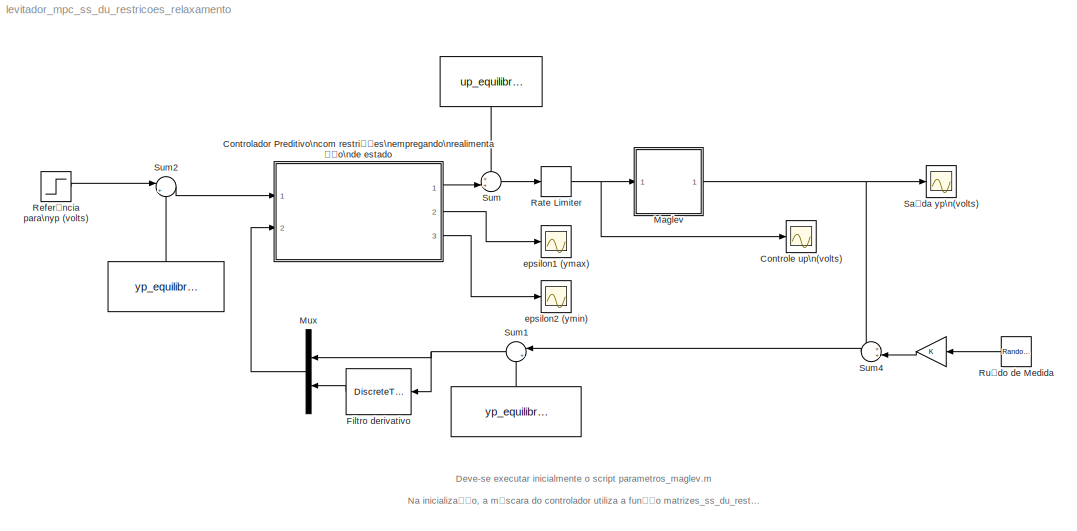
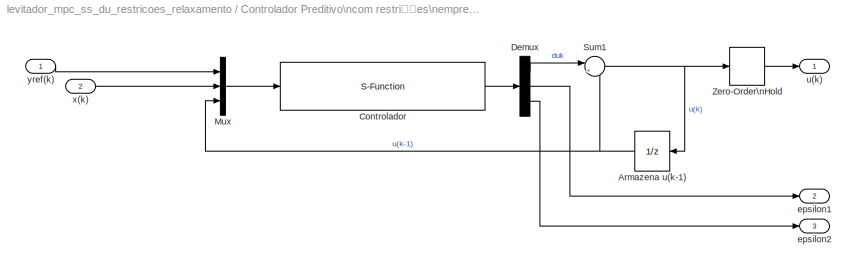
MODEL levitador_mpc_ss_du_restricoes_relaxamento
KIND model
CONFIG StartFcn = disp('Início da simulação.')\nclc
BLOCK [Constant]  
  SID = 42
  Value = yp_equilibrio
BLOCK [Constant]   
  SID = 43
  Value = yp_equilibrio
BLOCK [Constant]    
  SID = 41
  Value = up_equilibrio
BLOCK [Gain]      
  OutDataTypeStr = Inherit: Inherit via internal rule
  ParamDataTypeStr = Inherit: Inherit via internal rule
  SID = 83
  SaturateOnIntegerOverflow = off
BLOCK [SubSystem] Controlador Preditivo\ncom restrições\nempregando\nrealimentação\nde estado
  FunctionWithSeparateData = off
  MaskCallbackString = |||||||||||||||
  MaskEnableString = on,on,on,on,on,on,on,on,on,on,on,on,on,on,on,on
  MaskHideContents = off
  MaskIconFrame = on
  MaskIconOpaque = on
  MaskIconRotate = none
  MaskIconUnits = autoscale
  MaskInitialization = [Phi,G,Hqp,Aqp,flp,Alp] = matrizes_ss_du_restricoes_relaxamento(A,B,C,N,M,rho,d1,d2);\nulim = uplim - up_equilibrio;\nylim = yplim - yp_equilibrio;\nylim_physical = yplim_physical - yp_equilibrio;\numin = ulim(1);\numax = ulim(2);\ndumin = dulim(1);\ndumax = dulim(2);\nymin = ylim(1);\nymax = ylim(2);\nymin_physical = ylim_physical(1);\nymax_physical = ylim_physical(2);\n\n
  MaskPortRotate = default
  MaskPromptString = Peso do controle (rho)|Horizonte de Predição (N)|Horizonte de Controle (M)|Matriz A|Matriz B|Matriz C|up_equilibrio|yp_equilibrio|[dumin, dumax]|[upmin, upmax]|[ypmin, ypmax]|[ypmin_physical,ypmax_physical]|Peso da variável de folga associada a ymax (d1)|Peso da variável de folga associada a ymin (d2)|Usar relaxacao ? (0 = NAO, 1 = SIM)|Periodo de amostragem
  MaskStyleString = edit,edit,edit,edit,edit,edit,edit,edit,edit,edit,edit,edit,edit,edit,edit,edit
  MaskToolTipString = on,on,on,on,on,on,on,on,on,on,on,on,on,on,on,on
  MaskTunableValueString = on,on,on,on,on,on,on,on,on,on,on,on,on,on,on,on
  MaskValueString = 1|10|5|A|B|C|up_equilibrio|yp_equilibrio|[-0.25, 0.25]|[-inf, inf]|[-0.06 0.06]|[-inf, inf]|1|1|1|T
  MaskVariables = rho=@1;N=@2;M=@3;A=@4;B=@5;C=@6;up_equilibrio=@7;yp_equilibrio=@8;dulim=@9;uplim=@10;yplim=@11;yplim_physical=@12;d1=@13;d2=@14;relaxation_flag=@15;T=@16;
  MaskVisibilityString = on,on,on,on,on,on,on,on,on,on,on,on,on,on,on,on
  MinAlgLoopOccurrences = off
  Opaque = off
  Ports = [2, 3]
  PropExecContextOutsideSubsystem = off
  RTWSystemCode = Auto
  RequestExecContextInheritance = off
  SID = 59
BLOCK [UnitDelay] Controlador Preditivo\ncom restrições\nempregando\nrealimentação\nde estado/Armazena u(k-1)
  SID = 62
  SampleTime = T
BLOCK [S-Function] Controlador Preditivo\ncom restrições\nempregando\nrealimentação\nde estado/Controlador
  EnableBusSupport = off
  FunctionName = mpc_ss_du_restricoes_relaxamento
  Parameters = Phi,G,Hqp,Aqp,flp,Alp,dumax,dumin,umax,umin,ymax,ymin,ymax_physical,ymin_physical,M,N,relaxation_flag,T
  Ports = [1, 1]
  SID = 63
BLOCK [Demux] Controlador Preditivo\ncom restrições\nempregando\nrealimentação\nde estado/Demux
  DisplayOption = bar
  Outputs = 3
  Ports = [1, 3]
  SID = 77
BLOCK [Mux] Controlador Preditivo\ncom restrições\nempregando\nrealimentação\nde estado/Mux
  DisplayOption = bar
  Inputs = 3
  Ports = [3, 1]
  SID = 65
BLOCK [Sum] Controlador Preditivo\ncom restrições\nempregando\nrealimentação\nde estado/Sum1
  IconShape = round
  Inputs = |++
  Ports = [2, 1]
  SID = 66
BLOCK [ZeroOrderHold] Controlador Preditivo\ncom restrições\nempregando\nrealimentação\nde estado/Zero-Order\nHold
  SID = 67
  SampleTime = T
BLOCK [Outport] Controlador Preditivo\ncom restrições\nempregando\nrealimentação\nde estado/epsilon1
  IconDisplay = Port number
  Port = 2
  SID = 78
BLOCK [Outport] Controlador Preditivo\ncom restrições\nempregando\nrealimentação\nde estado/epsilon2
  IconDisplay = Port number
  Port = 3
  SID = 79
BLOCK [Outport] Controlador Preditivo\ncom restrições\nempregando\nrealimentação\nde estado/u(k)
  IconDisplay = Port number
  SID = 68
BLOCK [Inport] Controlador Preditivo\ncom restrições\nempregando\nrealimentação\nde estado/x(k)
  IconDisplay = Port number
  Port = 2
  SID = 61
BLOCK [Inport] Controlador Preditivo\ncom restrições\nempregando\nrealimentação\nde estado/yref(k)
  IconDisplay = Port number
  SID = 60
BLOCK [Scope] Controle up\n(volts)
  Floating = off
  LimitDataPoints = off
  NumInputPorts = 1
  Ports = [1]
  SID = 10
  SaveName = y1
  ShowLegends = off
  TimeRange = 1
  YMax = 3.1
  YMin = 2.1
BLOCK [DiscreteTransferFcn] Filtro derivativo
  Denominator = dend
  InputPortMap = u0
  Numerator = numd
  Ports = [1, 1]
  SID = 84
  SampleTime = T
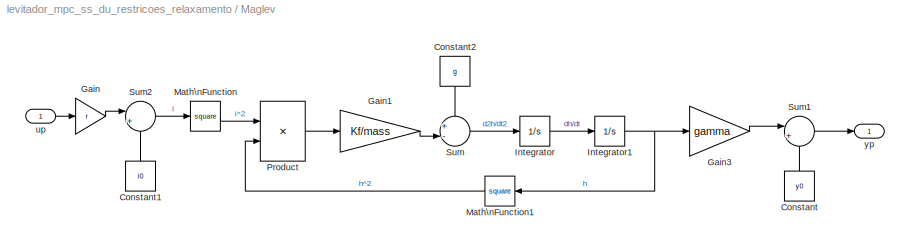
BLOCK [SubSystem] Maglev
  FunctionWithSeparateData = off
  MaskCallbackString = ||||||||
  MaskEnableString = on,on,on,on,on,on,on,on,on
  MaskHideContents = off
  MaskIconFrame = on
  MaskIconOpaque = on
  MaskIconRotate = none
  MaskIconUnits = autoscale
  MaskPortRotate = default
  MaskPromptString = mass (kg)|g (m/s^2)|y0 (V)|gamma (V/m)|i0 (A)|r (A/V)|Kf (N*m^2/A^2)|y inicial (V)|Periodo de Amostragem (s)
  MaskStyleString = edit,edit,edit,edit,edit,edit,edit,edit,edit
  MaskToolTipString = on,on,on,on,on,on,on,on,on
  MaskTunableValueString = on,on,on,on,on,on,on,on,on
  MaskValueString = mass|g|y0|gamma|i0|r|Kf|yp_equilibrio|T
  MaskVariables = mass=@1;g=@2;y0=@3;gamma=@4;i0=@5;r=@6;Kf=@7;y_inicial=@8;T=@9;
  MaskVisibilityString = on,on,on,on,on,on,on,on,on
  MinAlgLoopOccurrences = off
  Opaque = off
  Ports = [1, 1]
  PropExecContextOutsideSubsystem = off
  RTWSystemCode = Auto
  RequestExecContextInheritance = off
  SID = 12
BLOCK [Constant] Maglev/Constant
  SID = 14
  Value = y0
BLOCK [Constant] Maglev/Constant1
  SID = 15
  Value = i0
BLOCK [Constant] Maglev/Constant2
  SID = 16
  Value = g
BLOCK [Gain] Maglev/Gain
  Gain = r
  SID = 17
BLOCK [Gain] Maglev/Gain1
  Gain = Kf/mass
  SID = 18
BLOCK [Gain] Maglev/Gain3
  Gain = gamma
  SID = 19
BLOCK [Integrator] Maglev/Integrator
  Ports = [1, 1]
  SID = 20
BLOCK [Integrator] Maglev/Integrator1
  InitialCondition = (y_inicial - y0)/gamma
  Ports = [1, 1]
  SID = 21
BLOCK [Math] Maglev/Math\nFunction
  Operator = square
  Ports = [1, 1]
  SID = 22
BLOCK [Math] Maglev/Math\nFunction1
  Operator = square
  Ports = [1, 1]
  SID = 23
BLOCK [Product] Maglev/Product
  InputSameDT = off
  Inputs = */
  Ports = [2, 1]
  RndMeth = Floor
  SID = 24
BLOCK [Sum] Maglev/Sum
  IconShape = round
  InputSameDT = off
  Inputs = +-|
  OutDataTypeStr = Inherit: Inherit via internal rule
  Ports = [2, 1]
  SID = 25
BLOCK [Sum] Maglev/Sum1
  IconShape = round
  InputSameDT = off
  Inputs = |++
  OutDataTypeStr = Inherit: Inherit via internal rule
  Ports = [2, 1]
  SID = 26
BLOCK [Sum] Maglev/Sum2
  IconShape = round
  InputSameDT = off
  Inputs = |++
  OutDataTypeStr = Inherit: Inherit via internal rule
  Ports = [2, 1]
  SID = 27
BLOCK [Inport] Maglev/up
  IconDisplay = Port number
  SID = 13
BLOCK [Outport] Maglev/yp
  IconDisplay = Port number
  SID = 28
BLOCK [Mux] Mux
  DisplayOption = bar
  Inputs = 2
  Ports = [2, 1]
  SID = 29
BLOCK [RateLimiter] Rate Limiter
  FallingSlewLimit = -0.25/T
  RisingSlewLimit = 0.25/T
  SID = 71
BLOCK [Step] Referência para\nyp (volts)
  After = 0
  SID = 32
  SampleTime = 0
  Time = 0
BLOCK [RandomNumber] Ruído de Medida
  SID = 33
  SampleTime = 0
  Variance = 0.0001
BLOCK [Scope] Saída yp\n(volts)
  Floating = off
  LimitDataPoints = off
  NumInputPorts = 1
  Ports = [1]
  SID = 34
  SaveName = y
  ShowLegends = off
  TimeRange = 1
  YMax = 0.04000000000000001
  YMin = -0.06
BLOCK [Sum] Sum
  IconShape = round
  InputSameDT = off
  Inputs = ++|
  OutDataTypeStr = Inherit: Inherit via internal rule
  Ports = [2, 1]
  SID = 35
BLOCK [Sum] Sum1
  IconShape = round
  InputSameDT = off
  Inputs = |+-
  OutDataTypeStr = Inherit: Inherit via internal rule
  Ports = [2, 1]
  SID = 36
BLOCK [Sum] Sum2
  IconShape = round
  InputSameDT = off
  Inputs = |+-
  OutDataTypeStr = Inherit: Inherit via internal rule
  Ports = [2, 1]
  SID = 37
BLOCK [Sum] Sum4
  IconShape = round
  InputSameDT = off
  Inputs = ++|
  OutDataTypeStr = Inherit: Inherit via internal rule
  Ports = [2, 1]
  SID = 39
BLOCK [Scope] epsilon1 (ymax)
  Floating = off
  LimitDataPoints = off
  NumInputPorts = 1
  Ports = [1]
  SID = 80
  SaveName = y2
  ShowLegends = off
  TimeRange = 1
  YMax = 0.12
  YMin = -0.02
BLOCK [Scope] epsilon2 (ymin)
  Floating = off
  LimitDataPoints = off
  NumInputPorts = 1
  Ports = [1]
  SID = 81
  SaveName = y3
  ShowLegends = off
  TimeRange = 1
  YMax = 0.12
  YMin = -0.02
ANNOTATION (root): Deve-se executar inicialmente o script parametros_maglev.m\n\nNa inicialização, a máscara do controlador utiliza a função matrizes_ss_du_restricoes_relaxamento.m
LINE      :1 -> Sum4:2
LINE    :1 -> Sum:1
LINE   :1 -> Sum2:2
LINE  :1 -> Sum1:2
NET Controlador Preditivo\ncom restrições\nempregando\nrealimentação\nde estado/Armazena u(k-1):1 -> Controlador Preditivo\ncom restrições\nempregando\nrealimentação\nde estado/Mux:3, Controlador Preditivo\ncom restrições\nempregando\nrealimentação\nde estado/Sum1:2
LINE Controlador Preditivo\ncom restrições\nempregando\nrealimentação\nde estado/Controlador:1 -> Controlador Preditivo\ncom restrições\nempregando\nrealimentação\nde estado/Demux:1
LINE Controlador Preditivo\ncom restrições\nempregando\nrealimentação\nde estado/Demux:1 -> Controlador Preditivo\ncom restrições\nempregando\nrealimentação\nde estado/Sum1:1
LINE Controlador Preditivo\ncom restrições\nempregando\nrealimentação\nde estado/Demux:2 -> Controlador Preditivo\ncom restrições\nempregando\nrealimentação\nde estado/epsilon1:1
LINE Controlador Preditivo\ncom restrições\nempregando\nrealimentação\nde estado/Demux:3 -> Controlador Preditivo\ncom restrições\nempregando\nrealimentação\nde estado/epsilon2:1
LINE Controlador Preditivo\ncom restrições\nempregando\nrealimentação\nde estado/Mux:1 -> Controlador Preditivo\ncom restrições\nempregando\nrealimentação\nde estado/Controlador:1
NET Controlador Preditivo\ncom restrições\nempregando\nrealimentação\nde estado/Sum1:1 -> Controlador Preditivo\ncom restrições\nempregando\nrealimentação\nde estado/Armazena u(k-1):1, Controlador Preditivo\ncom restrições\nempregando\nrealimentação\nde estado/Zero-Order\nHold:1
LINE Controlador Preditivo\ncom restrições\nempregando\nrealimentação\nde estado/Zero-Order\nHold:1 -> Controlador Preditivo\ncom restrições\nempregando\nrealimentação\nde estado/u(k):1
LINE Controlador Preditivo\ncom restrições\nempregando\nrealimentação\nde estado/x(k):1 -> Controlador Preditivo\ncom restrições\nempregando\nrealimentação\nde estado/Mux:2
LINE Controlador Preditivo\ncom restrições\nempregando\nrealimentação\nde estado/yref(k):1 -> Controlador Preditivo\ncom restrições\nempregando\nrealimentação\nde estado/Mux:1
LINE Controlador Preditivo\ncom restrições\nempregando\nrealimentação\nde estado:1 -> Sum:2
LINE Controlador Preditivo\ncom restrições\nempregando\nrealimentação\nde estado:2 -> epsilon1 (ymax):1
LINE Controlador Preditivo\ncom restrições\nempregando\nrealimentação\nde estado:3 -> epsilon2 (ymin):1
LINE Filtro derivativo:1 -> Mux:2
LINE Maglev/Constant1:1 -> Maglev/Sum2:2
LINE Maglev/Constant2:1 -> Maglev/Sum:1
LINE Maglev/Constant:1 -> Maglev/Sum1:2
LINE Maglev/Gain1:1 -> Maglev/Sum:2
LINE Maglev/Gain3:1 -> Maglev/Sum1:1
LINE Maglev/Gain:1 -> Maglev/Sum2:1
NET Maglev/Integrator1:1 -> Maglev/Gain3:1, Maglev/Math\nFunction1:1
LINE Maglev/Integrator:1 -> Maglev/Integrator1:1
LINE Maglev/Math\nFunction1:1 -> Maglev/Product:2
LINE Maglev/Math\nFunction:1 -> Maglev/Product:1
LINE Maglev/Product:1 -> Maglev/Gain1:1
LINE Maglev/Sum1:1 -> Maglev/yp:1
LINE Maglev/Sum2:1 -> Maglev/Math\nFunction:1
LINE Maglev/Sum:1 -> Maglev/Integrator:1
LINE Maglev/up:1 -> Maglev/Gain:1
NET Maglev:1 -> Saída yp\n(volts):1, Sum4:1
LINE Mux:1 -> Controlador Preditivo\ncom restrições\nempregando\nrealimentação\nde estado:2
NET Rate Limiter:1 -> Controle up\n(volts):1, Maglev:1
LINE Referência para\nyp (volts):1 -> Sum2:1
LINE Ruído de Medida:1 ->      :1
NET Sum1:1 -> Filtro derivativo:1, Mux:1
LINE Sum2:1 -> Controlador Preditivo\ncom restrições\nempregando\nrealimentação\nde estado:1
LINE Sum4:1 -> Sum1:1
LINE Sum:1 -> Rate Limiter:1
note: NET lines group one-source signal fan-out (src -> all destinations, sorted); 1:1 wires keep LINE
